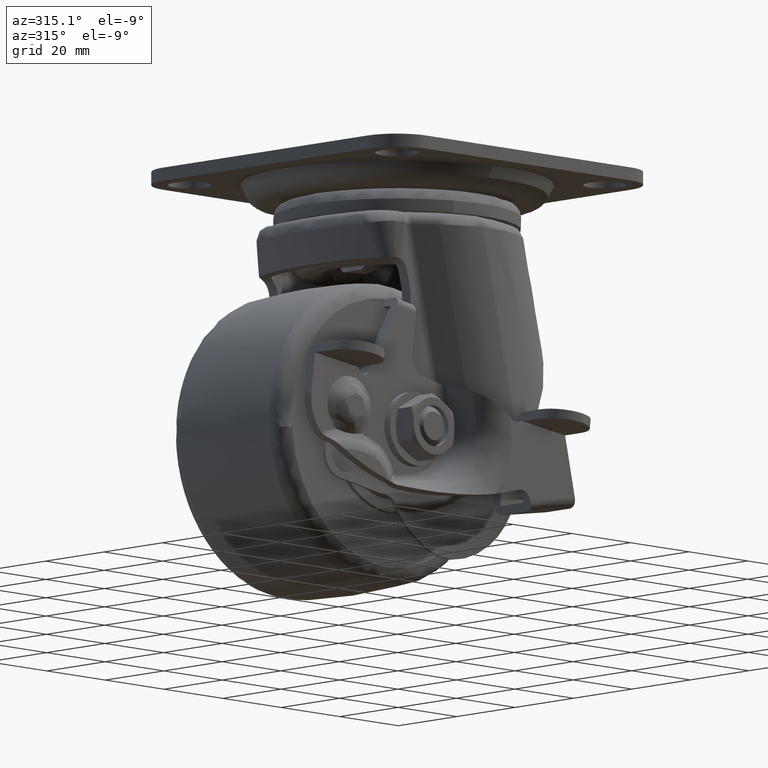
[diagram: clean part render]
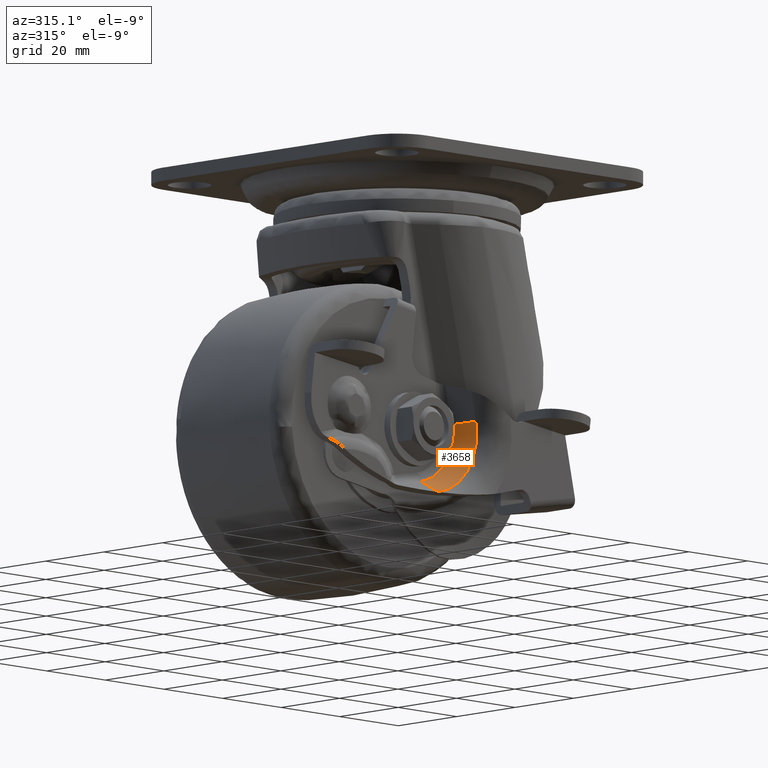
[diagram: same view with one face highlighted and labeled with its STEP entity id]
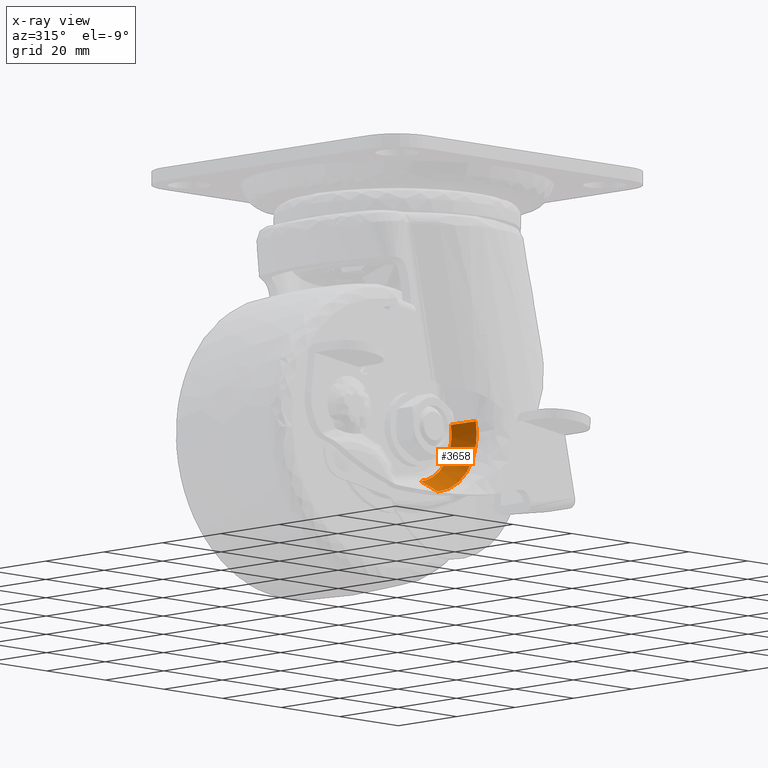
[diagram: x-ray of the same camera — body ghosted, the highlighted face saturated]
A machine part, auxiliary view. The second image highlights one B-rep face of the part: STEP entity #3658.
The next image is the same camera in x-ray: the body ghosted, the highlighted face saturated — about 0% of this face is hidden behind the body in this view.
In plain terms, the highlighted face is a freeform B-spline surface patch.
Its self-contained STEP definition (entity closure, byte-faithful):
#2172=CARTESIAN_POINT('',(-6.435241008303961,-33.365012999999898,-65.483538706608599));
#2173=VERTEX_POINT('',#2172);
#2187=CARTESIAN_POINT('',(-19.363904019828301,-33.365012999999948,-84.133673886436100));
#2188=VERTEX_POINT('',#2187);
#2189=CARTESIAN_POINT('',(-19.363904019828301,-33.365012999999948,-84.133673886436100));
#2190=CARTESIAN_POINT('',(-18.064952574400500,-33.365012999999983,-83.914939235747809));
#2191=CARTESIAN_POINT('',(-16.062658859496160,-33.365012999999912,-83.313346141537295));
#2192=CARTESIAN_POINT('',(-13.788095350107580,-33.365012999999927,-82.105834303995152));
#2193=CARTESIAN_POINT('',(-12.108499852839669,-33.365013000000182,-80.941107309221763));
#2194=CARTESIAN_POINT('',(-10.629204705903780,-33.365012999999287,-79.622991929134173));
#2195=CARTESIAN_POINT('',(-9.349493384803358,-33.365013000000729,-78.112047518923717));
#2196=CARTESIAN_POINT('',(-8.284776038923246,-33.365012999999109,-76.523876546446459));
#2197=CARTESIAN_POINT('',(-7.514434316961160,-33.365013000000467,-75.027087959084312));
#2198=CARTESIAN_POINT('',(-6.823633447659486,-33.365012999999927,-73.209163817044185));
#2199=CARTESIAN_POINT('',(-6.313271909079709,-33.365013000000189,-71.192801819870823));
#2200=CARTESIAN_POINT('',(-6.055759448428691,-33.365012999999067,-68.495897484668333));
#2201=CARTESIAN_POINT('',(-6.228312214941185,-33.365013000001227,-66.550371217968603));
#2202=CARTESIAN_POINT('',(-6.435241008303961,-33.365012999999898,-65.483538706608599));
#2203=B_SPLINE_CURVE_WITH_KNOTS('',3,(#2189,#2190,#2191,#2192,#2193,#2194,#2195,#2196,#2197,#2198,#2199,#2200,#2201,#2202),.UNSPECIFIED.,.F.,.U.,(4,1,1,1,1,1,1,1,1,1,1,4),(0.000000064405391,3.951636649643746,6.223853756389545,7.705734435333891,10.076742989139110,12.151335664483931,13.633201494761220,15.806608056347070,17.189688427397559,19.461896132990741,22.030469317260401,25.290580368993471),.UNSPECIFIED.);
#2204=EDGE_CURVE('',#2188,#2173,#2203,.T.);
#3108=CARTESIAN_POINT('',(-19.884771876471550,-27.939063999999799,-81.044606466304785));
#3109=VERTEX_POINT('',#3108);
#3130=CARTESIAN_POINT('',(-19.884771876471550,-27.939063999999799,-81.044606466304785));
#3131=CARTESIAN_POINT('',(-19.363904019828301,-33.365012999999948,-84.133673886436100));
#3132=QUASI_UNIFORM_CURVE('',1,(#3130,#3131),.UNSPECIFIED.,.F.,.U.);
#3133=EDGE_CURVE('',#3109,#2188,#3132,.T.);
#3386=CARTESIAN_POINT('',(-9.510691491197751,-27.939063999999799,-66.079563183848506));
#3387=VERTEX_POINT('',#3386);
#3393=CARTESIAN_POINT('',(-9.510691491197751,-27.939063999999799,-66.079563183848506));
#3394=CARTESIAN_POINT('',(-6.435241008303961,-33.365012999999898,-65.483538706608599));
#3395=QUASI_UNIFORM_CURVE('',1,(#3393,#3394),.UNSPECIFIED.,.F.,.U.);
#3396=EDGE_CURVE('',#3387,#2173,#3395,.T.);
#3624=CARTESIAN_POINT('',(-9.684211027816817,-27.803415274999800,-65.640599284188696));
#3625=CARTESIAN_POINT('',(-6.478220997647451,-33.504052943124947,-64.896253127571725));
#3626=CARTESIAN_POINT('',(-6.419618186546160,-27.803415274999796,-79.701600350204558));
#3627=CARTESIAN_POINT('',(-2.363804233174200,-33.504052943124961,-82.617549878554684));
#3628=CARTESIAN_POINT('',(-20.788162890137489,-27.803415274999796,-81.085161154315486));
#3629=CARTESIAN_POINT('',(-20.472702979190377,-33.504052943124954,-84.361272922708181));
#3637=(BOUNDED_SURFACE()B_SPLINE_SURFACE(1,2,((#3624,#3626,#3628),(#3625,#3627,#3629)),.UNSPECIFIED.,.F.,.F.,.U.)B_SPLINE_SURFACE_WITH_KNOTS((2,2),(3,3),(0.0,6.582529384489161),(0.0,28.903295618258849),.UNSPECIFIED.)GEOMETRIC_REPRESENTATION_ITEM()RATIONAL_B_SPLINE_SURFACE(((1.0,0.657762724022465,0.996609488278629),(1.0,0.657762724022465,0.996609488278629)))REPRESENTATION_ITEM('')SURFACE());
#3638=ORIENTED_EDGE('',*,*,#3396,.F.);
#3639=CARTESIAN_POINT('',(-9.510691491197751,-27.939063999999799,-66.079563183848506));
#3640=CARTESIAN_POINT('',(-9.364850428192675,-27.939063999999799,-66.831835355293066));
#3641=CARTESIAN_POINT('',(-9.196178468999444,-27.939063999999771,-68.494814274250515));
#3642=CARTESIAN_POINT('',(-9.433603520919251,-27.939063999999920,-70.981293818758445));
#3643=CARTESIAN_POINT('',(-10.188986712506271,-27.939064000000020,-73.443102936009367));
#3644=CARTESIAN_POINT('',(-11.359998585043741,-27.939063999998901,-75.617488378239045));
#3645=CARTESIAN_POINT('',(-12.757359870656479,-27.939064000001689,-77.320267658370526));
#3646=CARTESIAN_POINT('',(-14.105516220264880,-27.939063999997089,-78.513939741398659));
#3647=CARTESIAN_POINT('',(-15.410148043354569,-27.939064000003029,-79.418680375012528));
#3648=CARTESIAN_POINT('',(-17.261341257547109,-27.939063999997000,-80.393985753965723));
#3649=CARTESIAN_POINT('',(-18.842469354599380,-27.939064000000879,-80.869128471407635));
#3650=CARTESIAN_POINT('',(-19.884771876471550,-27.939063999999799,-81.044606466304785));
#3651=B_SPLINE_CURVE_WITH_KNOTS('',3,(#3639,#3640,#3641,#3642,#3643,#3644,#3645,#3646,#3647,#3648,#3649,#3650),.UNSPECIFIED.,.F.,.U.,(4,1,1,1,1,1,1,1,1,4),(0.000000068646653,2.298843090227766,4.994079182432497,7.451502820856145,9.988171794422078,12.366285015161480,14.030977951917640,15.378591613019591,17.122571291358831,20.293398745432022),.UNSPECIFIED.);
#3652=EDGE_CURVE('',#3387,#3109,#3651,.T.);
#3653=ORIENTED_EDGE('',*,*,#3652,.T.);
#3654=ORIENTED_EDGE('',*,*,#3133,.T.);
#3655=ORIENTED_EDGE('',*,*,#2204,.T.);
#3656=EDGE_LOOP('',(#3638,#3653,#3654,#3655));
#3657=FACE_OUTER_BOUND('',#3656,.T.);
#3658=ADVANCED_FACE('',(#3657),#3637,.F.);